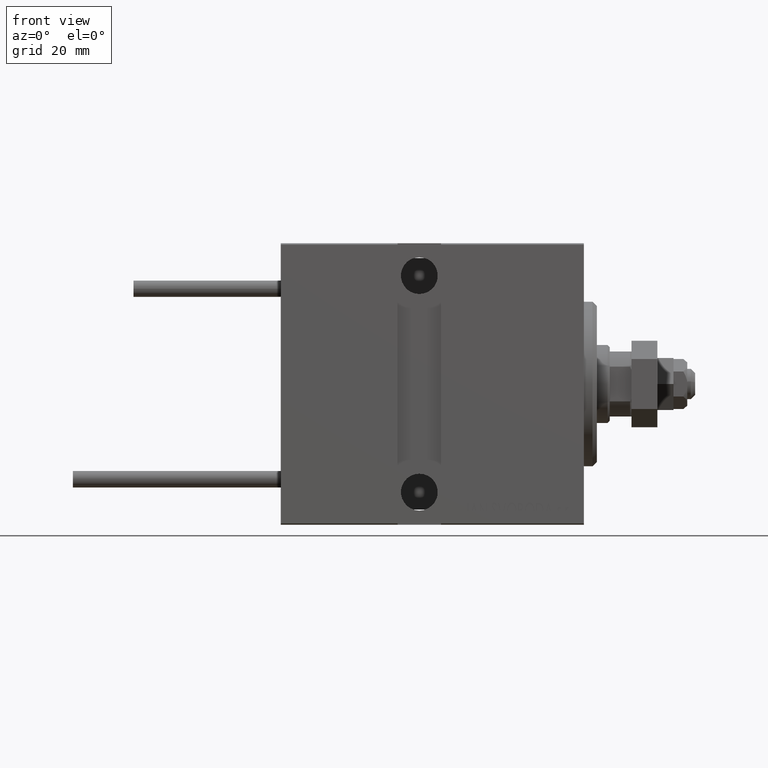
[diagram: clean part render]
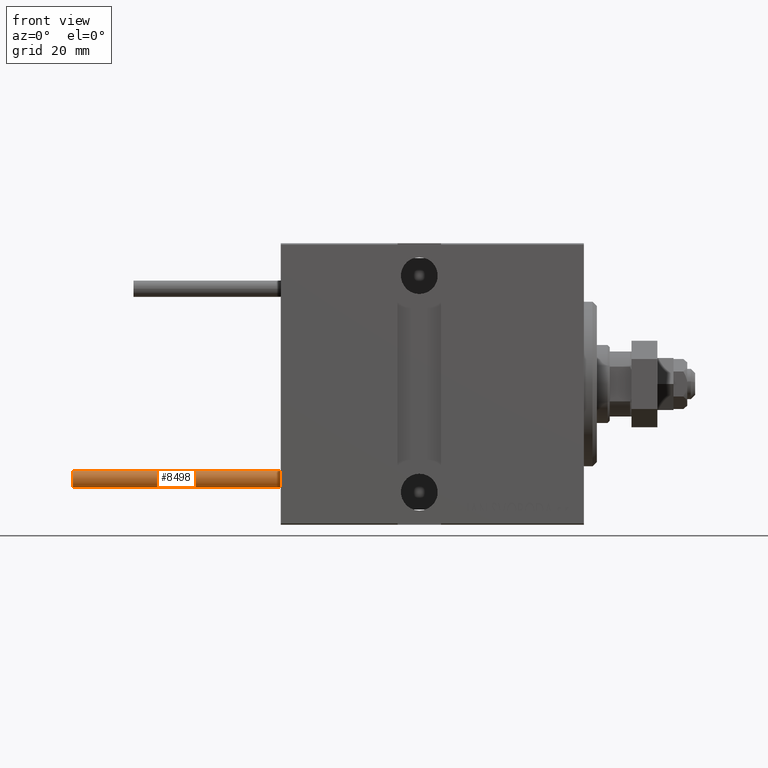
[diagram: same view with one face highlighted and labeled with its STEP entity id]
A machine part, front view. The second image highlights one B-rep face of the part: STEP entity #8498.
In plain terms, the highlighted cylindrical surface (edge-blend (fillet) strip) has radius 1.9 mm, axis along (1, -0, 0).
Its self-contained STEP definition (entity closure, byte-faithful):
#1048 = CARTESIAN_POINT ( 'NONE',  ( 0.000000000000000000, 0.000000000000000000, 48.00000000000000000 ) ) ;
#1119 = FACE_OUTER_BOUND ( 'NONE', #22528, .T. ) ;
#1681 = CARTESIAN_POINT ( 'NONE',  ( 1.899999999999999467, 2.326828918379970872E-16, 48.00000000000000000 ) ) ;
#1824 = ORIENTED_EDGE ( 'NONE', *, *, #3793, .F. ) ;
#2716 = CIRCLE ( 'NONE', #28545, 1.899999999999999467 ) ;
#2723 = VERTEX_POINT ( 'NONE', #34458 ) ;
#3793 = EDGE_CURVE ( 'NONE', #26754, #2723, #45447, .T. ) ;
#3948 = EDGE_CURVE ( 'NONE', #38554, #10893, #2716, .T. ) ;
#8001 = ORIENTED_EDGE ( 'NONE', *, *, #27840, .T. ) ;
#8139 = DIRECTION ( 'NONE',  ( 1.000000000000000000, 0.000000000000000000, 0.000000000000000000 ) ) ;
#8498 = ADVANCED_FACE ( 'NONE', ( #1119 ), #36484, .T. ) ;
#8958 = DIRECTION ( 'NONE',  ( -1.000000000000000000, 0.000000000000000000, 0.000000000000000000 ) ) ;
#9386 = CARTESIAN_POINT ( 'NONE',  ( 0.000000000000000000, 0.000000000000000000, 0.000000000000000000 ) ) ;
#9977 = ORIENTED_EDGE ( 'NONE', *, *, #3948, .T. ) ;
#10893 = VERTEX_POINT ( 'NONE', #27849 ) ;
#13426 = DIRECTION ( 'NONE',  ( 0.000000000000000000, 0.000000000000000000, 1.000000000000000000 ) ) ;
#15808 = AXIS2_PLACEMENT_3D ( 'NONE', #28913, #21329, #8958 ) ;
#17589 = LINE ( 'NONE', #1681, #30498 ) ;
#21329 = DIRECTION ( 'NONE',  ( -0.000000000000000000, -0.000000000000000000, -1.000000000000000000 ) ) ;
#22528 = EDGE_LOOP ( 'NONE', ( #38978, #1824, #8001, #9977 ) ) ;
#26754 = VERTEX_POINT ( 'NONE', #42515 ) ;
#27132 = CARTESIAN_POINT ( 'NONE',  ( -1.899999999999999467, 0.000000000000000000, 0.000000000000000000 ) ) ;
#27301 = EDGE_CURVE ( 'NONE', #2723, #10893, #17589, .T. ) ;
#27840 = EDGE_CURVE ( 'NONE', #26754, #38554, #42180, .T. ) ;
#27849 = CARTESIAN_POINT ( 'NONE',  ( 1.899999999999999467, 2.326828918379970872E-16, 0.000000000000000000 ) ) ;
#28545 = AXIS2_PLACEMENT_3D ( 'NONE', #9386, #13426, #32615 ) ;
#28913 = CARTESIAN_POINT ( 'NONE',  ( 0.000000000000000000, 0.000000000000000000, 48.00000000000000000 ) ) ;
#30498 = VECTOR ( 'NONE', #47608, 1000.000000000000000 ) ;
#32157 = VECTOR ( 'NONE', #42430, 1000.000000000000000 ) ;
#32615 = DIRECTION ( 'NONE',  ( 1.000000000000000000, 0.000000000000000000, 0.000000000000000000 ) ) ;
#34189 = AXIS2_PLACEMENT_3D ( 'NONE', #1048, #42716, #8139 ) ;
#34458 = CARTESIAN_POINT ( 'NONE',  ( 1.899999999999999467, 2.326828918379970872E-16, 48.00000000000000000 ) ) ;
#36484 = CYLINDRICAL_SURFACE ( 'NONE', #15808, 1.899999999999999467 ) ;
#38554 = VERTEX_POINT ( 'NONE', #27132 ) ;
#38978 = ORIENTED_EDGE ( 'NONE', *, *, #27301, .F. ) ;
#42180 = LINE ( 'NONE', #45947, #32157 ) ;
#42430 = DIRECTION ( 'NONE',  ( -0.000000000000000000, -0.000000000000000000, -1.000000000000000000 ) ) ;
#42515 = CARTESIAN_POINT ( 'NONE',  ( -1.899999999999999467, 0.000000000000000000, 48.00000000000000000 ) ) ;
#42716 = DIRECTION ( 'NONE',  ( 0.000000000000000000, 0.000000000000000000, 1.000000000000000000 ) ) ;
#45447 = CIRCLE ( 'NONE', #34189, 1.899999999999999467 ) ;
#45947 = CARTESIAN_POINT ( 'NONE',  ( -1.899999999999999467, 0.000000000000000000, 48.00000000000000000 ) ) ;
#47608 = DIRECTION ( 'NONE',  ( -0.000000000000000000, -0.000000000000000000, -1.000000000000000000 ) ) ;